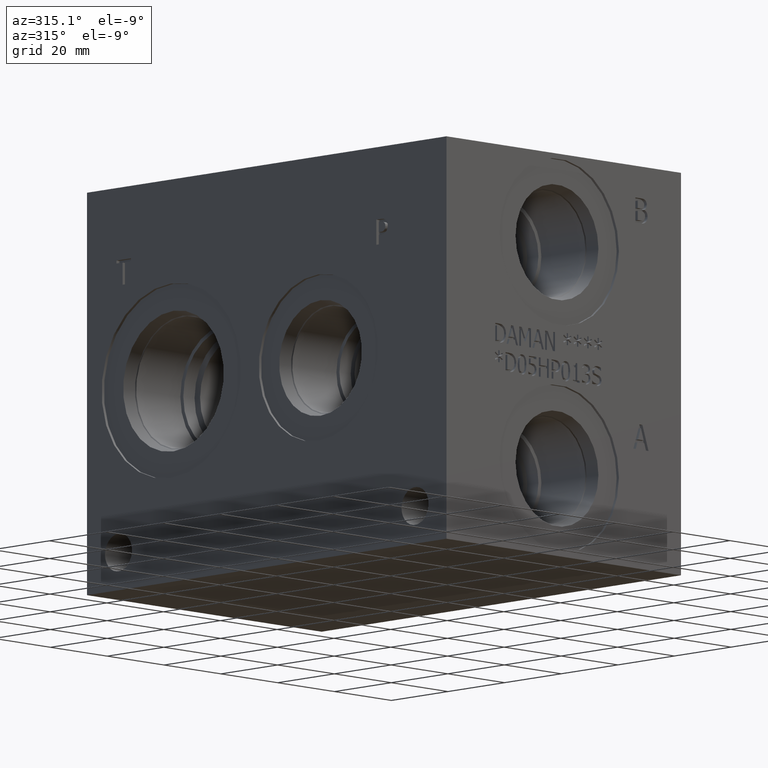
[diagram: clean part render]
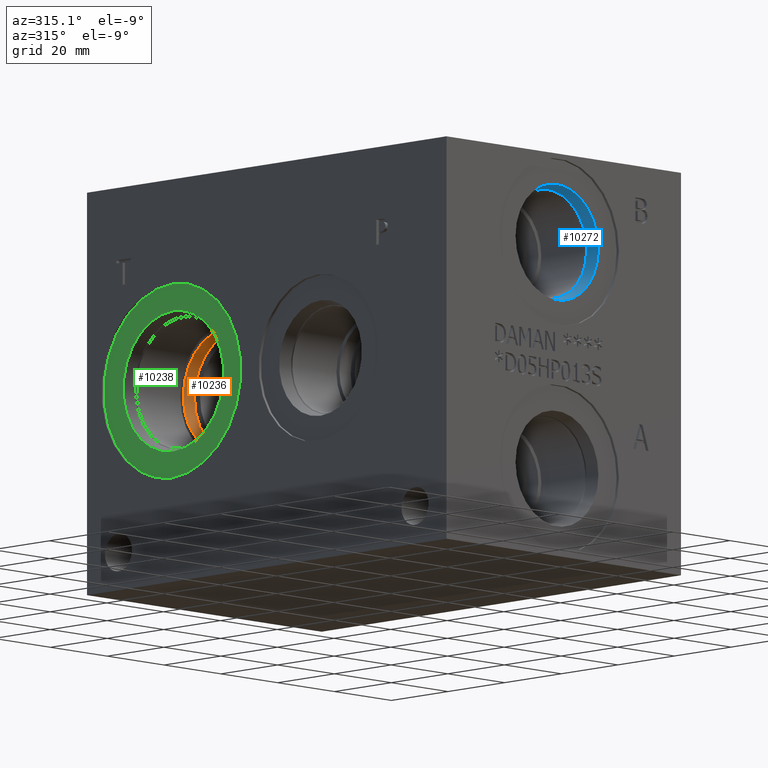
[diagram: same view with three faces highlighted in distinct colors, each labeled with its STEP entity id]
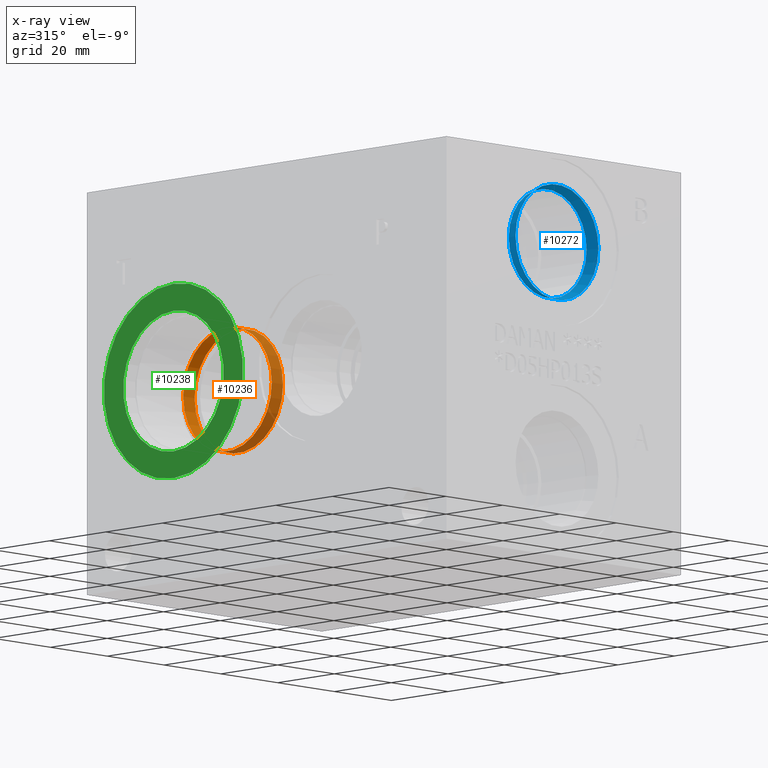
[diagram: x-ray of the same camera — body ghosted, the three highlighted faces saturated]
A machine part, auxiliary view with three faces highlighted in distinct colors.
The next image is the same camera in x-ray (body ghosted, the three faces saturated) — at least one of them is partly hidden behind the body in this view.
Their STEP definitions:

[orange] entity #10236 — the highlighted cylindrical surface (bore or boss wall) has radius 15.6337 mm, axis along (-1, 0, 0).
#35=CYLINDRICAL_SURFACE('',#10739,15.6337);
#184=CIRCLE('',#10730,15.6337);
#185=CIRCLE('',#10731,15.6337);
#188=CIRCLE('',#10735,15.6337);
#1210=FACE_OUTER_BOUND('',#1794,.T.);
#1794=EDGE_LOOP('',(#8705,#8706,#8707,#8708,#8709));
#2803=LINE('',#17303,#3778);
#3778=VECTOR('',#12677,15.6337);
#4678=VERTEX_POINT('',#17284);
#4679=VERTEX_POINT('',#17285);
#4682=VERTEX_POINT('',#17294);
#6054=EDGE_CURVE('',#4678,#4679,#184,.T.);
#6056=EDGE_CURVE('',#4679,#4678,#185,.T.);
#6059=EDGE_CURVE('',#4682,#4682,#188,.T.);
#6063=EDGE_CURVE('',#4682,#4679,#2803,.T.);
#8705=ORIENTED_EDGE('',*,*,#6059,.T.);
#8706=ORIENTED_EDGE('',*,*,#6063,.T.);
#8707=ORIENTED_EDGE('',*,*,#6054,.F.);
#8708=ORIENTED_EDGE('',*,*,#6056,.F.);
#8709=ORIENTED_EDGE('',*,*,#6063,.F.);
#10236=ADVANCED_FACE('',(#1210),#35,.F.);
#10730=AXIS2_PLACEMENT_3D('',#17286,#12655,#12656);
#10731=AXIS2_PLACEMENT_3D('',#17288,#12658,#12659);
#10735=AXIS2_PLACEMENT_3D('',#17295,#12666,#12667);
#10739=AXIS2_PLACEMENT_3D('',#17302,#12675,#12676);
#12655=DIRECTION('center_axis',(-1.,0.,0.));
#12656=DIRECTION('ref_axis',(0.,1.,0.));
#12658=DIRECTION('center_axis',(-1.,0.,0.));
#12659=DIRECTION('ref_axis',(0.,1.,0.));
#12666=DIRECTION('center_axis',(-1.,0.,0.));
#12667=DIRECTION('ref_axis',(0.,1.,0.));
#12675=DIRECTION('center_axis',(-1.,0.,0.));
#12676=DIRECTION('ref_axis',(0.,1.,0.));
#12677=DIRECTION('',(1.,0.,0.));
#17284=CARTESIAN_POINT('',(23.7998,112.8903,50.8));
#17285=CARTESIAN_POINT('',(23.7998,81.6229,50.8));
#17286=CARTESIAN_POINT('Origin',(23.7998,97.2566,50.8));
#17288=CARTESIAN_POINT('Origin',(23.7998,97.2566,50.8));
#17294=CARTESIAN_POINT('',(19.8374,81.6229,50.8));
#17295=CARTESIAN_POINT('Origin',(19.8374,97.2566,50.8));
#17302=CARTESIAN_POINT('Origin',(11.8999,97.2566,50.8));
#17303=CARTESIAN_POINT('',(11.8999,81.6229,50.8));

[blue] entity #10272 — the highlighted conical surface has half-angle 15 deg.
#93=CONICAL_SURFACE('',#10831,14.15415,0.261799389532319);
#245=CIRCLE('',#10829,14.5923);
#246=CIRCLE('',#10830,14.5923);
#247=CIRCLE('',#10832,13.716);
#248=CIRCLE('',#10833,13.716);
#1246=FACE_OUTER_BOUND('',#1837,.T.);
#1837=EDGE_LOOP('',(#8885,#8886,#8887,#8888,#8889,#8890));
#2832=LINE('',#17484,#3807);
#3807=VECTOR('',#12890,14.15415);
#4742=VERTEX_POINT('',#17478);
#4743=VERTEX_POINT('',#17479);
#4744=VERTEX_POINT('',#17483);
#4745=VERTEX_POINT('',#17485);
#6146=EDGE_CURVE('',#4742,#4743,#245,.T.);
#6147=EDGE_CURVE('',#4743,#4742,#246,.T.);
#6148=EDGE_CURVE('',#4743,#4744,#2832,.T.);
#6149=EDGE_CURVE('',#4744,#4745,#247,.T.);
#6150=EDGE_CURVE('',#4745,#4744,#248,.T.);
#8885=ORIENTED_EDGE('',*,*,#6146,.F.);
#8886=ORIENTED_EDGE('',*,*,#6147,.F.);
#8887=ORIENTED_EDGE('',*,*,#6148,.T.);
#8888=ORIENTED_EDGE('',*,*,#6149,.T.);
#8889=ORIENTED_EDGE('',*,*,#6150,.T.);
#8890=ORIENTED_EDGE('',*,*,#6148,.F.);
#10272=ADVANCED_FACE('',(#1246),#93,.F.);
#10829=AXIS2_PLACEMENT_3D('',#17480,#12884,#12885);
#10830=AXIS2_PLACEMENT_3D('',#17481,#12886,#12887);
#10831=AXIS2_PLACEMENT_3D('',#17482,#12888,#12889);
#10832=AXIS2_PLACEMENT_3D('',#17486,#12891,#12892);
#10833=AXIS2_PLACEMENT_3D('',#17487,#12893,#12894);
#12884=DIRECTION('center_axis',(0.,1.,0.));
#12885=DIRECTION('ref_axis',(1.,0.,0.));
#12886=DIRECTION('center_axis',(0.,1.,0.));
#12887=DIRECTION('ref_axis',(1.,0.,0.));
#12888=DIRECTION('center_axis',(0.,-1.,0.));
#12889=DIRECTION('ref_axis',(1.,0.,0.));
#12890=DIRECTION('',(0.258819046776634,0.965925825840491,-3.16961917193374E-17));
#12891=DIRECTION('center_axis',(0.,1.,0.));
#12892=DIRECTION('ref_axis',(1.,0.,0.));
#12893=DIRECTION('center_axis',(0.,1.,0.));
#12894=DIRECTION('ref_axis',(1.,0.,0.));
#17478=CARTESIAN_POINT('',(54.2671,0.7874,79.375));
#17479=CARTESIAN_POINT('',(25.0825,0.787399999999999,79.375));
#17480=CARTESIAN_POINT('Origin',(39.6748,0.7874,79.375));
#17481=CARTESIAN_POINT('Origin',(39.6748,0.7874,79.375));
#17482=CARTESIAN_POINT('Origin',(39.6748,2.42259805,79.375));
#17483=CARTESIAN_POINT('',(25.9588,4.0577961,79.375));
#17484=CARTESIAN_POINT('',(25.52065,2.42259805,79.375));
#17485=CARTESIAN_POINT('',(53.3908,4.0577961,79.375));
#17486=CARTESIAN_POINT('Origin',(39.6748,4.0577961,79.375));
#17487=CARTESIAN_POINT('Origin',(39.6748,4.0577961,79.375));

[green] entity #10238 — the highlighted planar face has unit normal (1, 0, 0).
#191=CIRCLE('',#10741,24.5618);
#192=CIRCLE('',#10742,24.5618);
#193=CIRCLE('',#10744,17.7546);
#194=CIRCLE('',#10745,17.7546);
#351=FACE_BOUND('',#1797,.T.);
#1212=FACE_OUTER_BOUND('',#1796,.T.);
#1796=EDGE_LOOP('',(#8716,#8717));
#1797=EDGE_LOOP('',(#8718,#8719));
#4685=VERTEX_POINT('',#17305);
#4686=VERTEX_POINT('',#17307);
#4687=VERTEX_POINT('',#17311);
#4688=VERTEX_POINT('',#17312);
#6065=EDGE_CURVE('',#4685,#4686,#191,.T.);
#6066=EDGE_CURVE('',#4686,#4685,#192,.T.);
#6067=EDGE_CURVE('',#4687,#4688,#193,.T.);
#6068=EDGE_CURVE('',#4688,#4687,#194,.T.);
#8716=ORIENTED_EDGE('',*,*,#6066,.F.);
#8717=ORIENTED_EDGE('',*,*,#6065,.F.);
#8718=ORIENTED_EDGE('',*,*,#6067,.T.);
#8719=ORIENTED_EDGE('',*,*,#6068,.T.);
#9358=PLANE('',#10743);
#10238=ADVANCED_FACE('',(#1212,#351),#9358,.F.);
#10741=AXIS2_PLACEMENT_3D('',#17308,#12681,#12682);
#10742=AXIS2_PLACEMENT_3D('',#17309,#12683,#12684);
#10743=AXIS2_PLACEMENT_3D('',#17310,#12685,#12686);
#10744=AXIS2_PLACEMENT_3D('',#17313,#12687,#12688);
#10745=AXIS2_PLACEMENT_3D('',#17314,#12689,#12690);
#12681=DIRECTION('center_axis',(1.,0.,0.));
#12682=DIRECTION('ref_axis',(0.,0.,-1.));
#12683=DIRECTION('center_axis',(1.,0.,0.));
#12684=DIRECTION('ref_axis',(0.,0.,-1.));
#12685=DIRECTION('center_axis',(1.,0.,0.));
#12686=DIRECTION('ref_axis',(0.,0.,-1.));
#12687=DIRECTION('center_axis',(1.,0.,0.));
#12688=DIRECTION('ref_axis',(0.,0.,-1.));
#12689=DIRECTION('center_axis',(1.,0.,0.));
#12690=DIRECTION('ref_axis',(0.,0.,-1.));
#17305=CARTESIAN_POINT('',(0.7874,97.2566,26.2382));
#17307=CARTESIAN_POINT('',(0.7874,97.2566,75.3618));
#17308=CARTESIAN_POINT('Origin',(0.7874,97.2566,50.8));
#17309=CARTESIAN_POINT('Origin',(0.7874,97.2566,50.8));
#17310=CARTESIAN_POINT('Origin',(0.7874,97.2566,68.5546));
#17311=CARTESIAN_POINT('',(0.7874,97.2566,68.5546));
#17312=CARTESIAN_POINT('',(0.787400000000001,97.2566,33.0454));
#17313=CARTESIAN_POINT('Origin',(0.7874,97.2566,50.8));
#17314=CARTESIAN_POINT('Origin',(0.7874,97.2566,50.8));